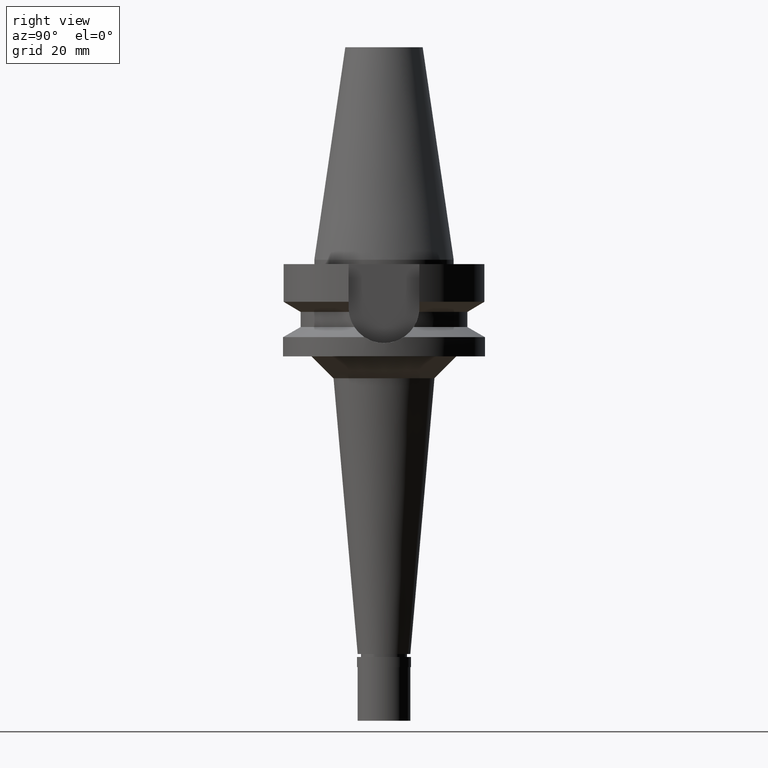
[diagram: clean part render]
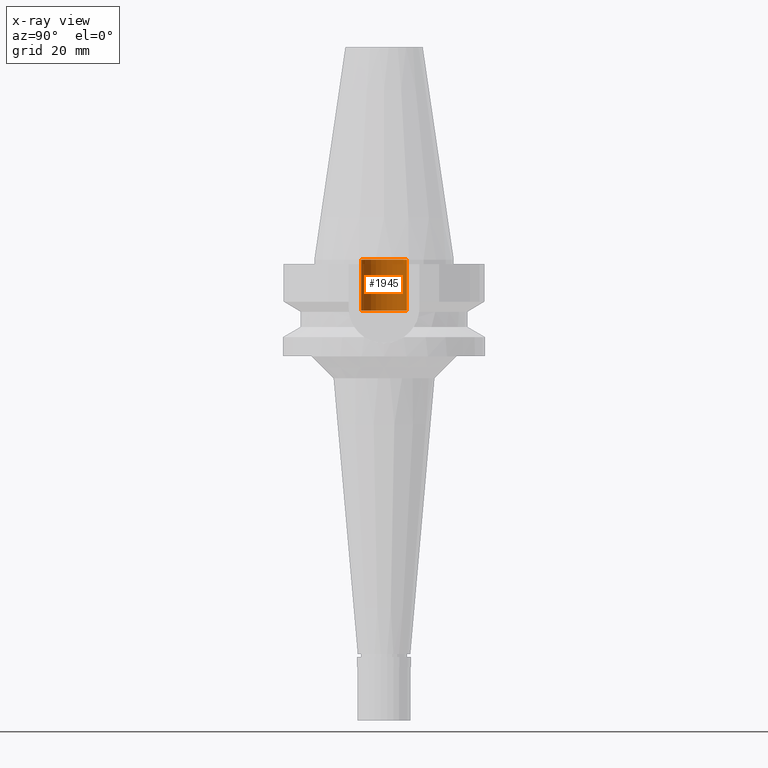
[diagram: x-ray — body ghosted, one internal face saturated and labeled with its STEP entity id]
A machine part, right view, then the same camera in x-ray: the body is ghosted and one INTERNAL B-rep face — a face not visible from any outside direction — is saturated and labeled: STEP entity #1945.
In plain terms, the highlighted cylindrical surface (edge-blend (fillet) strip) has radius 5.2 mm, axis along (0, 0, -1).
Its self-contained STEP definition (entity closure, byte-faithful):
#13 = DIRECTION ( 'NONE',  ( 0.0000000000000000000, 0.0000000000000000000, 1.000000000000000000 ) ) ;
#87 = DIRECTION ( 'NONE',  ( 0.0000000000000000000, -1.000000000000000000, 0.0000000000000000000 ) ) ;
#225 = AXIS2_PLACEMENT_3D ( 'NONE', #1684, #1453, #318 ) ;
#233 = LINE ( 'NONE', #1126, #948 ) ;
#318 = DIRECTION ( 'NONE',  ( 0.0000000000000000000, -1.000000000000000000, 0.0000000000000000000 ) ) ;
#322 = FACE_OUTER_BOUND ( 'NONE', #1060, .T. ) ;
#359 = DIRECTION ( 'NONE',  ( 0.0000000000000000000, 0.0000000000000000000, -1.000000000000000000 ) ) ;
#468 = ORIENTED_EDGE ( 'NONE', *, *, #2580, .F. ) ;
#499 = EDGE_CURVE ( 'NONE', #1707, #510, #233, .T. ) ;
#510 = VERTEX_POINT ( 'NONE', #1329 ) ;
#538 = VERTEX_POINT ( 'NONE', #922 ) ;
#630 = LINE ( 'NONE', #2200, #877 ) ;
#697 = ORIENTED_EDGE ( 'NONE', *, *, #499, .F. ) ;
#761 = VERTEX_POINT ( 'NONE', #976 ) ;
#809 = CIRCLE ( 'NONE', #1028, 5.200000000000000178 ) ;
#824 = CARTESIAN_POINT ( 'NONE',  ( 0.0000000000000000000, 1.908856965831000054E-14, 55.87000000000000455 ) ) ;
#877 = VECTOR ( 'NONE', #1540, 1000.000000000000000 ) ;
#922 = CARTESIAN_POINT ( 'NONE',  ( 0.0000000000000000000, 5.200000000000000178, -11.59999999999999964 ) ) ;
#948 = VECTOR ( 'NONE', #13, 1000.000000000000000 ) ;
#976 = CARTESIAN_POINT ( 'NONE',  ( 0.0000000000000000000, 5.200000000000000178, 9.237055564880999494E-14 ) ) ;
#1028 = AXIS2_PLACEMENT_3D ( 'NONE', #2178, #1937, #2562 ) ;
#1060 = EDGE_LOOP ( 'NONE', ( #468, #697, #1451, #2409 ) ) ;
#1126 = CARTESIAN_POINT ( 'NONE',  ( 0.0000000000000000000, -5.200000000000000178, -11.59999999999999964 ) ) ;
#1329 = CARTESIAN_POINT ( 'NONE',  ( 0.0000000000000000000, -5.200000000000000178, 9.237055564880999494E-14 ) ) ;
#1451 = ORIENTED_EDGE ( 'NONE', *, *, #2473, .T. ) ;
#1453 = DIRECTION ( 'NONE',  ( 0.0000000000000000000, 0.0000000000000000000, -1.000000000000000000 ) ) ;
#1540 = DIRECTION ( 'NONE',  ( 0.0000000000000000000, 0.0000000000000000000, 1.000000000000000000 ) ) ;
#1557 = AXIS2_PLACEMENT_3D ( 'NONE', #824, #359, #87 ) ;
#1684 = CARTESIAN_POINT ( 'NONE',  ( 0.0000000000000000000, 1.908856965831000054E-14, 9.947598300640998705E-14 ) ) ;
#1707 = VERTEX_POINT ( 'NONE', #2706 ) ;
#1937 = DIRECTION ( 'NONE',  ( 0.0000000000000000000, 0.0000000000000000000, -1.000000000000000000 ) ) ;
#1945 = ADVANCED_FACE ( 'NONE', ( #322 ), #2624, .F. ) ;
#2124 = EDGE_CURVE ( 'NONE', #538, #761, #630, .T. ) ;
#2178 = CARTESIAN_POINT ( 'NONE',  ( 0.0000000000000000000, 1.908856965831000054E-14, -11.59999999999999964 ) ) ;
#2200 = CARTESIAN_POINT ( 'NONE',  ( 0.0000000000000000000, 5.200000000000000178, -11.59999999999999964 ) ) ;
#2409 = ORIENTED_EDGE ( 'NONE', *, *, #2124, .T. ) ;
#2473 = EDGE_CURVE ( 'NONE', #1707, #538, #809, .T. ) ;
#2557 = CIRCLE ( 'NONE', #225, 5.200000000000000178 ) ;
#2562 = DIRECTION ( 'NONE',  ( 0.0000000000000000000, -1.000000000000000000, 0.0000000000000000000 ) ) ;
#2580 = EDGE_CURVE ( 'NONE', #510, #761, #2557, .T. ) ;
#2624 = CYLINDRICAL_SURFACE ( 'NONE', #1557, 5.200000000000000178 ) ;
#2706 = CARTESIAN_POINT ( 'NONE',  ( 0.0000000000000000000, -5.200000000000000178, -11.59999999999999964 ) ) ;